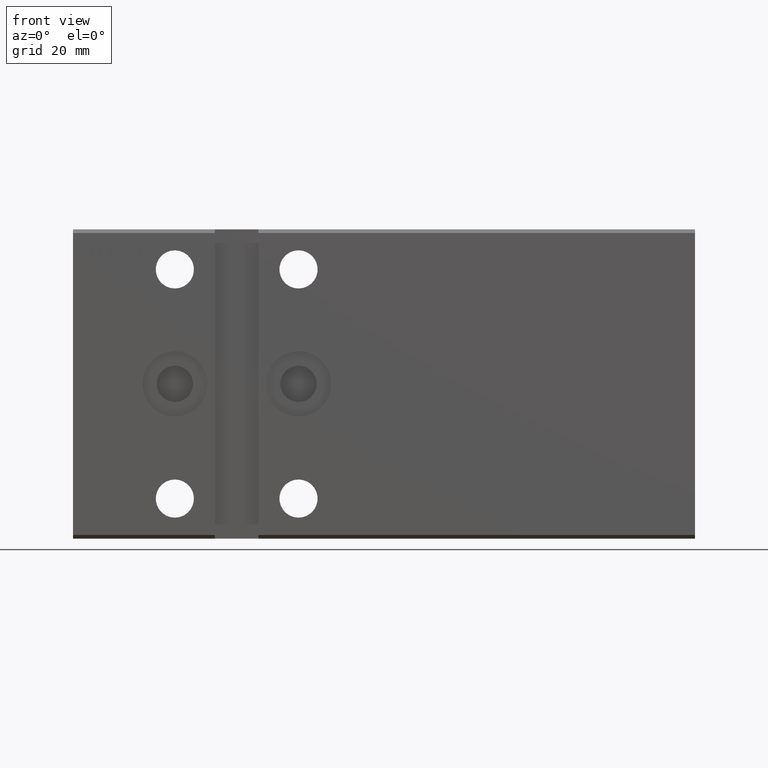
[diagram: clean part render]
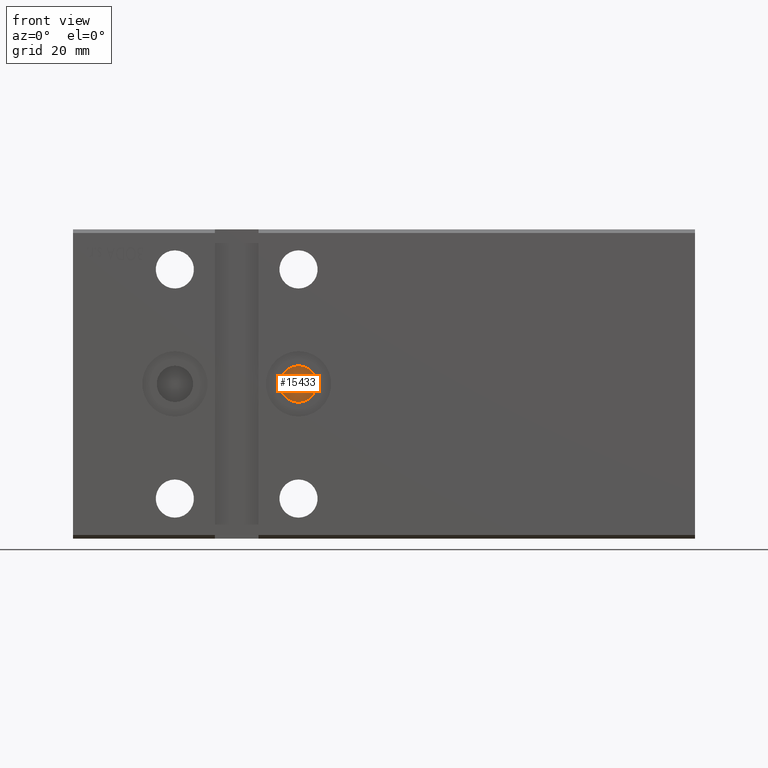
[diagram: same view with one face highlighted and labeled with its STEP entity id]
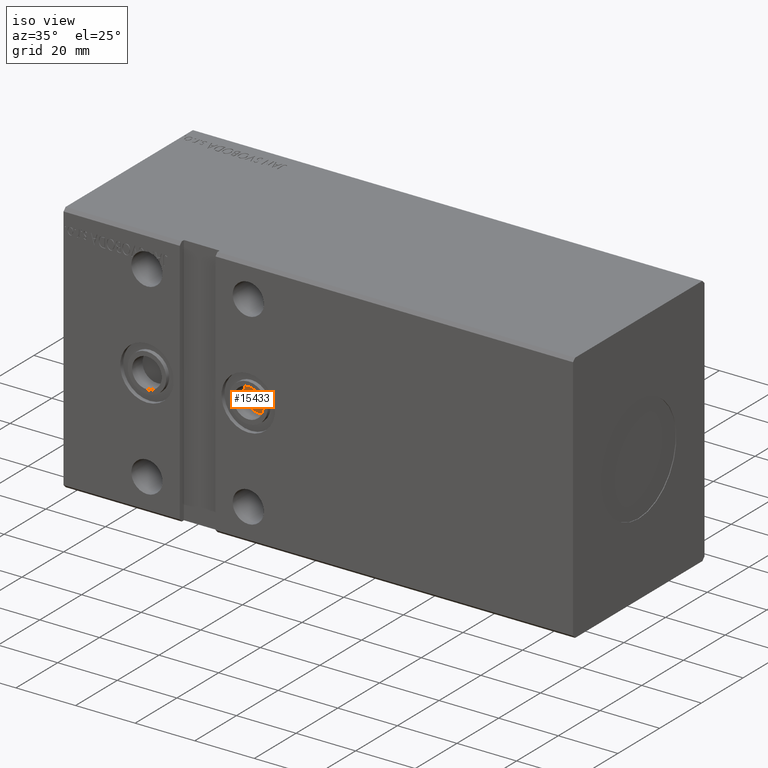
[diagram: same view with one face highlighted and labeled with its STEP entity id]
A machine part, front view. The second image highlights one B-rep face of the part: STEP entity #15433.
A second angle (iso view) of the same face is appended — the face is thin or edge-on in the first view.
In plain terms, the highlighted planar face has unit normal (0, -1, -0).
Its self-contained STEP definition (entity closure, byte-faithful):
#1540 = AXIS2_PLACEMENT_3D ( 'NONE', #8971, #9365, #2046 ) ;
#2046 = DIRECTION ( 'NONE',  ( 0.000000000000000000, 0.000000000000000000, -1.000000000000000000 ) ) ;
#5508 = DIRECTION ( 'NONE',  ( 0.000000000000000000, -1.000000000000000000, -5.507058653894625853E-17 ) ) ;
#8971 = CARTESIAN_POINT ( 'NONE',  ( 62.00000000000000711, -26.50000000000000000, -2.499741854111495244E-15 ) ) ;
#9365 = DIRECTION ( 'NONE',  ( 0.000000000000000000, -1.000000000000000000, -5.507058653894625853E-17 ) ) ;
#9429 = VERTEX_POINT ( 'NONE', #29234 ) ;
#9485 = ORIENTED_EDGE ( 'NONE', *, *, #20582, .T. ) ;
#11244 = VERTEX_POINT ( 'NONE', #11928 ) ;
#11928 = CARTESIAN_POINT ( 'NONE',  ( 62.00000000000000711, -26.50000000000000000, -5.000000000000000000 ) ) ;
#13995 = CIRCLE ( 'NONE', #1540, 4.999999999999997335 ) ;
#14354 = CARTESIAN_POINT ( 'NONE',  ( 62.00000000000000711, -26.50000000000000000, -2.499741854111495244E-15 ) ) ;
#15150 = CARTESIAN_POINT ( 'NONE',  ( 62.00000000000000711, -26.50000000000000000, -2.499741854111495244E-15 ) ) ;
#15433 = ADVANCED_FACE ( 'NONE', ( #23417 ), #38836, .T. ) ;
#18250 = DIRECTION ( 'NONE',  ( 0.000000000000000000, 0.000000000000000000, -1.000000000000000000 ) ) ;
#20582 = EDGE_CURVE ( 'NONE', #9429, #11244, #13995, .T. ) ;
#23113 = ORIENTED_EDGE ( 'NONE', *, *, #31654, .T. ) ;
#23417 = FACE_OUTER_BOUND ( 'NONE', #27392, .T. ) ;
#25169 = AXIS2_PLACEMENT_3D ( 'NONE', #14354, #35949, #33076 ) ;
#27392 = EDGE_LOOP ( 'NONE', ( #23113, #9485 ) ) ;
#27394 = AXIS2_PLACEMENT_3D ( 'NONE', #15150, #5508, #18250 ) ;
#29234 = CARTESIAN_POINT ( 'NONE',  ( 62.00000000000000711, -26.50000000000000000, 4.999999999999994671 ) ) ;
#30657 = CIRCLE ( 'NONE', #27394, 4.999999999999997335 ) ;
#31654 = EDGE_CURVE ( 'NONE', #11244, #9429, #30657, .T. ) ;
#33076 = DIRECTION ( 'NONE',  ( 0.000000000000000000, 5.507058653894625853E-17, -1.000000000000000000 ) ) ;
#35949 = DIRECTION ( 'NONE',  ( 0.000000000000000000, -1.000000000000000000, -5.507058653894625853E-17 ) ) ;
#38836 = PLANE ( 'NONE',  #25169 ) ;